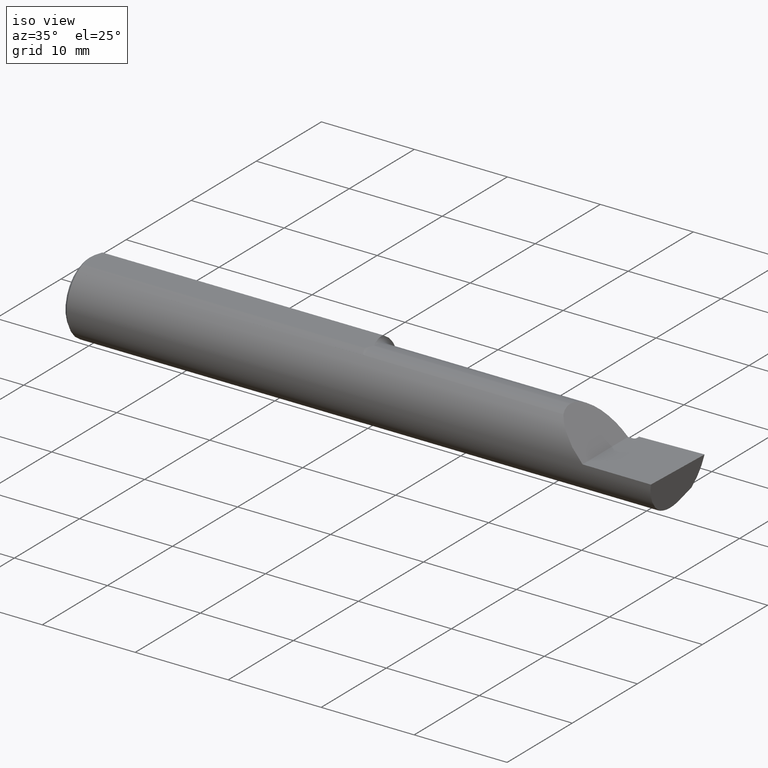
[diagram: clean part render]
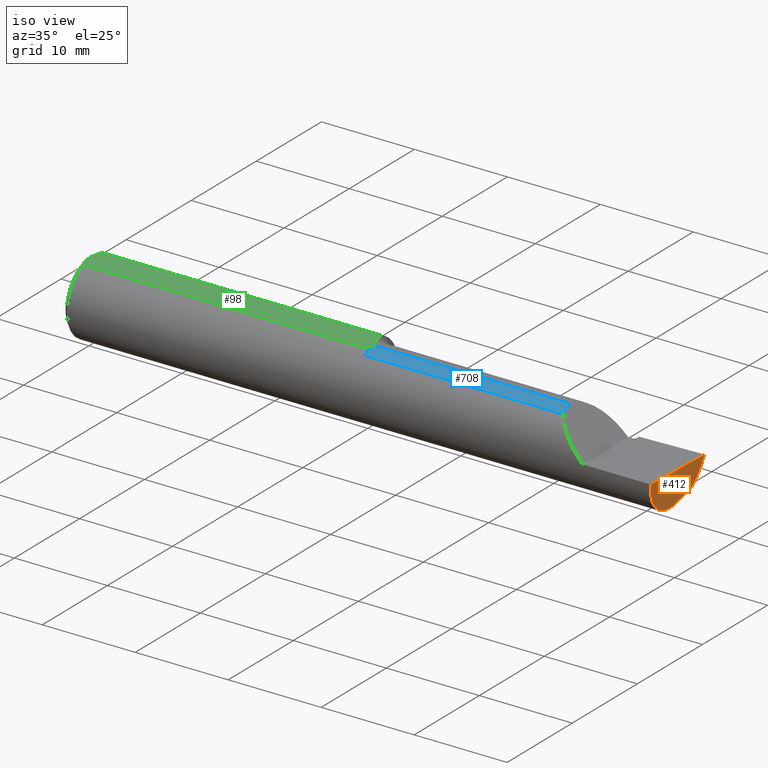
[diagram: same view with three faces highlighted in distinct colors, each labeled with its STEP entity id]
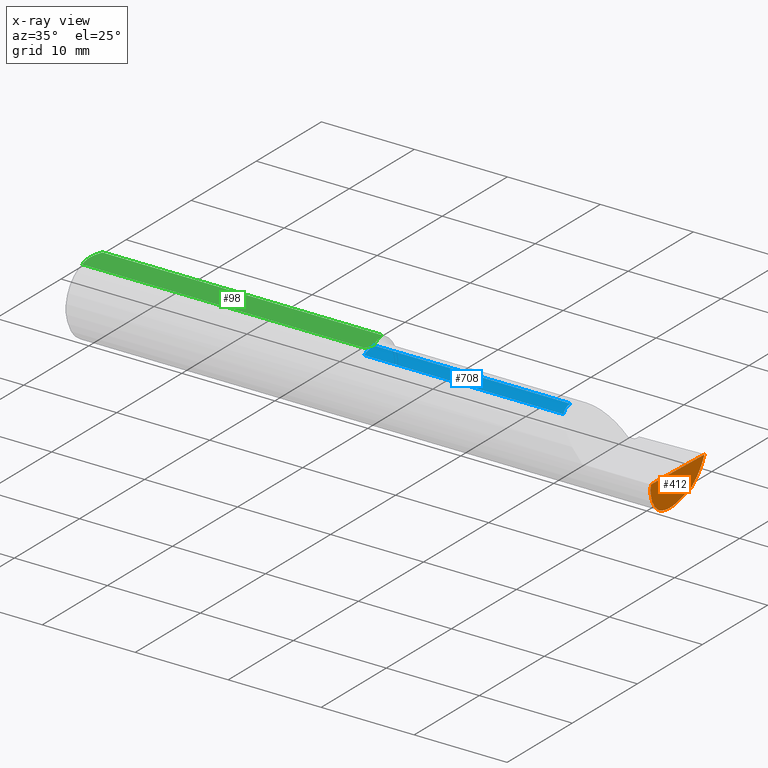
[diagram: x-ray of the same camera — body ghosted, the three highlighted faces saturated]
A machine part, iso view with three faces highlighted in distinct colors.
The next image is the same camera in x-ray (body ghosted, the three faces saturated) — at least one of them is partly hidden behind the body in this view.
Their STEP definitions:

[orange] entity #412 — the highlighted planar face has unit normal (-0.992, 0.0344, 0.1219).
#1 = CARTESIAN_POINT ( 'NONE',  ( 2.499553225608604823, 0.1407279727905360600, 3.826894855694925850E-18 ) ) ;
#19 = VERTEX_POINT ( 'NONE', #198 ) ;
#63 = ORIENTED_EDGE ( 'NONE', *, *, #346, .F. ) ;
#64 = CARTESIAN_POINT ( 'NONE',  ( 2.484581445595339666, 0.09576735185317598875, -0.1091794601135748777 ) ) ;
#68 = CARTESIAN_POINT ( 'NONE',  ( 2.476130359589496788, -0.02499999999999999098, -0.1439000000000000556 ) ) ;
#73 = CARTESIAN_POINT ( 'NONE',  ( 2.475676552398977215, -0.08569999999999944329, -0.1304711462354803120 ) ) ;
#79 = CARTESIAN_POINT ( 'NONE',  ( 2.500000000000000000, 0.1536194554637218546, 2.048885995248197414E-16 ) ) ;
#99 =( BOUNDED_CURVE ( )  B_SPLINE_CURVE ( 3, ( #621, #131, #139, #350 ),
 .UNSPECIFIED., .F., .F. ) 
 B_SPLINE_CURVE_WITH_KNOTS ( ( 4, 4 ),
 ( 6.122674497807367722, 6.558126988897922338 ),
 .UNSPECIFIED. ) 
 CURVE ( )  GEOMETRIC_REPRESENTATION_ITEM ( )  RATIONAL_B_SPLINE_CURVE ( ( 1.000000000000000000, 0.9842607512044745377, 0.9842607512044745377, 1.000000000000000000 ) ) 
 REPRESENTATION_ITEM ( '' )  );
#105 = CARTESIAN_POINT ( 'NONE',  ( 2.500000000000000000, 0.1536194554637218546, 2.048885995248197414E-16 ) ) ;
#126 = CARTESIAN_POINT ( 'NONE',  ( 2.489315288308734608, 0.1256128547571744025, -0.07906752438118797022 ) ) ;
#130 = ORIENTED_EDGE ( 'NONE', *, *, #627, .T. ) ;
#131 = CARTESIAN_POINT ( 'NONE',  ( 2.475247014433751946, -0.06661082633900415606, -0.1393521354400290846 ) ) ;
#139 = CARTESIAN_POINT ( 'NONE',  ( 2.475400702430881950, -0.04605394310600625929, -0.1439000000000000834 ) ) ;
#160 = ORIENTED_EDGE ( 'NONE', *, *, #526, .F. ) ;
#168 =( BOUNDED_CURVE ( )  B_SPLINE_CURVE ( 3, ( #555, #398, #175, #612 ),
 .UNSPECIFIED., .F., .T. ) 
 B_SPLINE_CURVE_WITH_KNOTS ( ( 4, 4 ),
 ( 0.2749416817183363282, 0.6240075321171965061 ),
 .UNSPECIFIED. ) 
 CURVE ( )  GEOMETRIC_REPRESENTATION_ITEM ( )  RATIONAL_B_SPLINE_CURVE ( ( 1.000000000000000000, 0.9898718353414723836, 0.9898718353414723836, 1.000000000000000000 ) ) 
 REPRESENTATION_ITEM ( '' )  );
#175 = CARTESIAN_POINT ( 'NONE',  ( 2.477647009804057276, 0.008402520951239019972, -0.1409776580835795379 ) ) ;
#198 = CARTESIAN_POINT ( 'NONE',  ( 2.475676552398977215, -0.08569999999999944329, -0.1304711462354803120 ) ) ;
#208 = DIRECTION ( 'NONE',  ( 0.07437990725530781166, 0.9370896517296887218, 0.3410727400684822053 ) ) ;
#224 = VERTEX_POINT ( 'NONE', #105 ) ;
#235 = EDGE_LOOP ( 'NONE', ( #130, #615, #576, #654, #63, #160 ) ) ;
#243 = VECTOR ( 'NONE', #508, 39.37007874015748143 ) ;
#274 = EDGE_CURVE ( 'NONE', #613, #517, #168, .T. ) ;
#301 = VERTEX_POINT ( 'NONE', #681 ) ;
#315 = DIRECTION ( 'NONE',  ( 0.1219414168599299575, 0.000000000000000000, 0.9925372994775525370 ) ) ;
#346 = EDGE_CURVE ( 'NONE', #301, #224, #470, .T. ) ;
#350 = CARTESIAN_POINT ( 'NONE',  ( 2.476130359589496788, -0.02499999999999999098, -0.1439000000000000556 ) ) ;
#393 =( BOUNDED_CURVE ( )  B_SPLINE_CURVE ( 3, ( #73, #577, #676, #680 ),
 .UNSPECIFIED., .F., .F. ) 
 B_SPLINE_CURVE_WITH_KNOTS ( ( 4, 4 ),
 ( 0.3062340898531133448, 1.295854645076560674 ),
 .UNSPECIFIED. ) 
 CURVE ( )  GEOMETRIC_REPRESENTATION_ITEM ( )  RATIONAL_B_SPLINE_CURVE ( ( 1.000000000000000000, 0.9200392120919970163, 0.9200392120919970163, 1.000000000000000000 ) ) 
 REPRESENTATION_ITEM ( '' )  );
#398 = CARTESIAN_POINT ( 'NONE',  ( 2.476713598110543035, -0.008170903630063761774, -0.1439000000000000834 ) ) ;
#412 = ADVANCED_FACE ( 'NONE', ( #482 ), #691, .F. ) ;
#459 = CARTESIAN_POINT ( 'NONE',  ( 2.478902233428061930, 0.02421669862456291358, -0.1352217681310924902 ) ) ;
#465 =( BOUNDED_CURVE ( )  B_SPLINE_CURVE ( 3, ( #64, #126, #514, #79 ),
 .UNSPECIFIED., .F., .F. ) 
 B_SPLINE_CURVE_WITH_KNOTS ( ( 4, 4 ),
 ( 4.206370596475368373, 4.793754225472294905 ),
 .UNSPECIFIED. ) 
 CURVE ( )  GEOMETRIC_REPRESENTATION_ITEM ( )  RATIONAL_B_SPLINE_CURVE ( ( 1.000000000000000000, 0.9714544434386379601, 0.9714544434386379601, 1.000000000000000000 ) ) 
 REPRESENTATION_ITEM ( '' )  );
#470 = LINE ( 'NONE', #1, #243 ) ;
#478 = DIRECTION ( 'NONE',  ( -0.9919506264397697226, 0.03437759245049914342, 0.1218693392246628371 ) ) ;
#481 = LINE ( 'NONE', #637, #606 ) ;
#482 = FACE_OUTER_BOUND ( 'NONE', #235, .T. ) ;
#508 = DIRECTION ( 'NONE',  ( 0.03463576215158579996, 0.9994000019912840926, 0.000000000000000000 ) ) ;
#514 = CARTESIAN_POINT ( 'NONE',  ( 2.494605827839288192, 0.1454635380981003090, -0.04160498188424514160 ) ) ;
#517 = VERTEX_POINT ( 'NONE', #459 ) ;
#526 = EDGE_CURVE ( 'NONE', #19, #301, #393, .T. ) ;
#555 = CARTESIAN_POINT ( 'NONE',  ( 2.476130359589496788, -0.02499999999999999098, -0.1439000000000000556 ) ) ;
#560 = EDGE_CURVE ( 'NONE', #661, #224, #465, .T. ) ;
#575 = AXIS2_PLACEMENT_3D ( 'NONE', #582, #478, #315 ) ;
#576 = ORIENTED_EDGE ( 'NONE', *, *, #685, .T. ) ;
#577 = CARTESIAN_POINT ( 'NONE',  ( 2.477743596163800799, -0.1305938407426047998, -0.1009826174484541872 ) ) ;
#582 = CARTESIAN_POINT ( 'NONE',  ( 2.444043095161126278, 0.1555735136390714868, -0.4560102071422535985 ) ) ;
#594 = CARTESIAN_POINT ( 'NONE',  ( 2.484581445595339666, 0.09576735185317598875, -0.1091794601135748777 ) ) ;
#606 = VECTOR ( 'NONE', #208, 39.37007874015748143 ) ;
#612 = CARTESIAN_POINT ( 'NONE',  ( 2.478902233428061930, 0.02421669862456291358, -0.1352217681310924902 ) ) ;
#613 = VERTEX_POINT ( 'NONE', #68 ) ;
#615 = ORIENTED_EDGE ( 'NONE', *, *, #274, .T. ) ;
#621 = CARTESIAN_POINT ( 'NONE',  ( 2.475676552398977215, -0.08569999999999944329, -0.1304711462354803120 ) ) ;
#627 = EDGE_CURVE ( 'NONE', #19, #613, #99, .T. ) ;
#637 = CARTESIAN_POINT ( 'NONE',  ( 2.479018954091639859, 0.02568722648642991421, -0.1346865397607137915 ) ) ;
#654 = ORIENTED_EDGE ( 'NONE', *, *, #560, .T. ) ;
#661 = VERTEX_POINT ( 'NONE', #594 ) ;
#676 = CARTESIAN_POINT ( 'NONE',  ( 2.482667168175672678, -0.1560999999999999888, -0.05371247775559866849 ) ) ;
#680 = CARTESIAN_POINT ( 'NONE',  ( 2.489266190342419360, -0.1561000000000000165, 3.826894855694925850E-18 ) ) ;
#681 = CARTESIAN_POINT ( 'NONE',  ( 2.489266190342419360, -0.1561000000000000165, 3.826894855694925850E-18 ) ) ;
#685 = EDGE_CURVE ( 'NONE', #517, #661, #481, .T. ) ;
#691 = PLANE ( 'NONE',  #575 ) ;

[blue] entity #708 — the highlighted cylindrical surface (partial cylindrical patch) has radius 3.6551 mm, axis along (-1, -0, -0).
#12 = ORIENTED_EDGE ( 'NONE', *, *, #254, .F. ) ;
#78 = ORIENTED_EDGE ( 'NONE', *, *, #342, .T. ) ;
#89 =( BOUNDED_CURVE ( )  B_SPLINE_CURVE ( 3, ( #663, #401, #234, #713 ),
 .UNSPECIFIED., .F., .F. ) 
 B_SPLINE_CURVE_WITH_KNOTS ( ( 4, 4 ),
 ( 5.847732816089013852, 6.283185307179586232 ),
 .UNSPECIFIED. ) 
 CURVE ( )  GEOMETRIC_REPRESENTATION_ITEM ( )  RATIONAL_B_SPLINE_CURVE ( ( 1.000000000000000000, 0.9842607512044733165, 0.9842607512044733165, 1.000000000000000000 ) ) 
 REPRESENTATION_ITEM ( '' )  );
#104 = FACE_OUTER_BOUND ( 'NONE', #177, .T. ) ;
#112 = EDGE_CURVE ( 'NONE', #188, #493, #699, .T. ) ;
#114 = DIRECTION ( 'NONE',  ( 0.000000000000000000, 0.000000000000000000, 1.000000000000000000 ) ) ;
#174 = VERTEX_POINT ( 'NONE', #500 ) ;
#177 = EDGE_LOOP ( 'NONE', ( #455, #668, #12, #78 ) ) ;
#188 = VERTEX_POINT ( 'NONE', #283 ) ;
#189 = CARTESIAN_POINT ( 'NONE',  ( 2.069528853764521781, -0.08570000000000160822, 0.1304711462354791740 ) ) ;
#199 = EDGE_CURVE ( 'NONE', #620, #188, #89, .T. ) ;
#234 = CARTESIAN_POINT ( 'NONE',  ( 2.056100000000000705, -0.04605394310600714747, 0.1439000000000000834 ) ) ;
#254 = EDGE_CURVE ( 'NONE', #174, #493, #449, .T. ) ;
#265 = VECTOR ( 'NONE', #645, 39.37007874015748143 ) ;
#266 = DIRECTION ( 'NONE',  ( 0.000000000000000000, 0.000000000000000000, 1.000000000000000000 ) ) ;
#283 = CARTESIAN_POINT ( 'NONE',  ( 2.056100000000000705, -0.02500000000000000486, 0.1439000000000000556 ) ) ;
#322 = DIRECTION ( 'NONE',  ( -1.000000000000000000, -0.000000000000000000, -0.000000000000000000 ) ) ;
#332 = AXIS2_PLACEMENT_3D ( 'NONE', #373, #322, #266 ) ;
#338 = DIRECTION ( 'NONE',  ( -1.000000000000000000, -0.000000000000000000, -0.000000000000000000 ) ) ;
#342 = EDGE_CURVE ( 'NONE', #174, #620, #686, .T. ) ;
#373 = CARTESIAN_POINT ( 'NONE',  ( 0.000000000000000000, -0.02500000000000000486, 0.000000000000000000 ) ) ;
#401 = CARTESIAN_POINT ( 'NONE',  ( 2.060647864559971953, -0.06661082633900586303, 0.1393521354400287238 ) ) ;
#445 = CARTESIAN_POINT ( 'NONE',  ( 1.225000000000000089, -0.02500000000000000486, 0.000000000000000000 ) ) ;
#449 = CIRCLE ( 'NONE', #538, 0.1439000000000000001 ) ;
#455 = ORIENTED_EDGE ( 'NONE', *, *, #199, .T. ) ;
#493 = VERTEX_POINT ( 'NONE', #694 ) ;
#500 = CARTESIAN_POINT ( 'NONE',  ( 1.225000000000000089, -0.08569999999999958207, 0.1304711462354801732 ) ) ;
#533 = CARTESIAN_POINT ( 'NONE',  ( 0.000000000000000000, -0.02500000000000000486, 0.1439000000000000556 ) ) ;
#538 = AXIS2_PLACEMENT_3D ( 'NONE', #445, #338, #114 ) ;
#584 = CYLINDRICAL_SURFACE ( 'NONE', #332, 0.1439000000000000556 ) ;
#586 = VECTOR ( 'NONE', #632, 39.37007874015748143 ) ;
#614 = CARTESIAN_POINT ( 'NONE',  ( 1.722499999999999698, -0.08569999999999944329, 0.1304711462354803120 ) ) ;
#620 = VERTEX_POINT ( 'NONE', #189 ) ;
#632 = DIRECTION ( 'NONE',  ( 1.000000000000000000, 0.000000000000000000, 0.000000000000000000 ) ) ;
#645 = DIRECTION ( 'NONE',  ( -1.000000000000000000, -0.000000000000000000, -0.000000000000000000 ) ) ;
#663 = CARTESIAN_POINT ( 'NONE',  ( 2.069528853764521781, -0.08570000000000160822, 0.1304711462354791740 ) ) ;
#668 = ORIENTED_EDGE ( 'NONE', *, *, #112, .T. ) ;
#686 = LINE ( 'NONE', #614, #586 ) ;
#694 = CARTESIAN_POINT ( 'NONE',  ( 1.225000000000000089, -0.02500000000000000486, 0.1439000000000000001 ) ) ;
#699 = LINE ( 'NONE', #533, #265 ) ;
#708 = ADVANCED_FACE ( 'NONE', ( #104 ), #584, .T. ) ;
#713 = CARTESIAN_POINT ( 'NONE',  ( 2.056100000000000705, -0.02500000000000000486, 0.1439000000000000556 ) ) ;

[green] entity #98 — the highlighted planar face has unit normal (-0, 0, -1).
#18 = CARTESIAN_POINT ( 'NONE',  ( 0.01499999999999972536, -0.06001999666777736026, 0.1440999999999999504 ) ) ;
#23 = CARTESIAN_POINT ( 'NONE',  ( 1.221036826405246689, -0.03107590170041915276, 0.1441000000000000059 ) ) ;
#26 = CARTESIAN_POINT ( 'NONE',  ( 1.212837095251398045, -0.05422015848554267992, 0.1440999999999999781 ) ) ;
#27 = CARTESIAN_POINT ( 'NONE',  ( 0.002999999999999654852, 1.764715027525136477E-17, 0.1440999999999999504 ) ) ;
#28 = EDGE_CURVE ( 'NONE', #38, #49, #503, .T. ) ;
#38 = VERTEX_POINT ( 'NONE', #593 ) ;
#48 = CARTESIAN_POINT ( 'NONE',  ( 1.221844053232376215, -0.02500000000003146580, 0.1440999999999999504 ) ) ;
#49 = VERTEX_POINT ( 'NONE', #312 ) ;
#81 = CARTESIAN_POINT ( 'NONE',  ( 0.01133677082750125277, -0.05049267068356103755, 0.1440999999999999781 ) ) ;
#82 = AXIS2_PLACEMENT_3D ( 'NONE', #272, #380, #263 ) ;
#86 = CARTESIAN_POINT ( 'NONE',  ( 1.210843495424060334, -0.06001999666777306508, 0.1440999999999999504 ) ) ;
#88 = CARTESIAN_POINT ( 'NONE',  ( 0.002999999999999648781, 0.01034624861404697359, 0.1440999999999999781 ) ) ;
#98 = ADVANCED_FACE ( 'NONE', ( #489 ), #436, .F. ) ;
#109 = CARTESIAN_POINT ( 'NONE',  ( 1.220724021719191255, -0.01776615298046146582, 0.1440999999999999781 ) ) ;
#127 = EDGE_CURVE ( 'NONE', #49, #403, #339, .T. ) ;
#144 = CARTESIAN_POINT ( 'NONE',  ( 2.500000000000000000, 0.06001999666777736719, 0.1440999999999999504 ) ) ;
#145 = CARTESIAN_POINT ( 'NONE',  ( 0.01131807689752593361, 0.05044405151276061539, 0.1440999999999999781 ) ) ;
#155 = ORIENTED_EDGE ( 'NONE', *, *, #475, .F. ) ;
#162 = CARTESIAN_POINT ( 'NONE',  ( 1.204082834115638212, 0.03088512097718107766, 0.1440999999999999504 ) ) ;
#190 = ORIENTED_EDGE ( 'NONE', *, *, #28, .T. ) ;
#196 = CARTESIAN_POINT ( 'NONE',  ( 2.500000000000000000, -0.06001999666777736719, 0.1440999999999999504 ) ) ;
#203 = ORIENTED_EDGE ( 'NONE', *, *, #127, .T. ) ;
#229 = EDGE_CURVE ( 'NONE', #628, #334, #399, .T. ) ;
#253 = CARTESIAN_POINT ( 'NONE',  ( 1.210843495424060334, -0.06001999666777306508, 0.1440999999999999504 ) ) ;
#260 = LINE ( 'NONE', #144, #278 ) ;
#261 = CARTESIAN_POINT ( 'NONE',  ( 0.002999999999999647914, -0.01031315224690933403, 0.1440999999999999781 ) ) ;
#263 = DIRECTION ( 'NONE',  ( -1.000000000000000000, 0.000000000000000000, 0.000000000000000000 ) ) ;
#264 = ORIENTED_EDGE ( 'NONE', *, *, #229, .F. ) ;
#268 = VECTOR ( 'NONE', #630, 39.37007874015748143 ) ;
#272 = CARTESIAN_POINT ( 'NONE',  ( 0.000000000000000000, 0.06250000000000000000, 0.1440999999999999504 ) ) ;
#278 = VECTOR ( 'NONE', #695, 39.37007874015748143 ) ;
#296 = EDGE_LOOP ( 'NONE', ( #264, #524, #190, #203, #673, #155 ) ) ;
#312 = CARTESIAN_POINT ( 'NONE',  ( 0.002999999999999654852, 1.764715027525136477E-17, 0.1440999999999999504 ) ) ;
#334 = VERTEX_POINT ( 'NONE', #512 ) ;
#339 = B_SPLINE_CURVE_WITH_KNOTS ( 'NONE', 3,
 ( #27, #261, #652, #366, #81, #529 ),
 .UNSPECIFIED., .F., .F.,
 ( 4, 2, 4 ),
 ( 0.004180243930011207955, 0.004951811791491188969, 0.005723379652971170850 ),
 .UNSPECIFIED. ) ;
#355 = LINE ( 'NONE', #196, #268 ) ;
#366 = CARTESIAN_POINT ( 'NONE',  ( 0.008281010600930404503, -0.04057055625899311929, 0.1440999999999999226 ) ) ;
#368 = CARTESIAN_POINT ( 'NONE',  ( 1.218148277183320749, -0.03981762987256245306, 0.1440999999999999504 ) ) ;
#375 = CARTESIAN_POINT ( 'NONE',  ( 0.002999999999999654852, 1.764715027525136477E-17, 0.1440999999999999504 ) ) ;
#380 = DIRECTION ( 'NONE',  ( -0.000000000000000000, 0.000000000000000000, -1.000000000000000000 ) ) ;
#389 = CARTESIAN_POINT ( 'NONE',  ( 1.213353959584573483, 0.002866311517153515617, 0.1440999999999999504 ) ) ;
#399 = B_SPLINE_CURVE_WITH_KNOTS ( 'NONE', 3,
 ( #558, #657, #162, #727, #389, #453, #506, #109, #609, #48 ),
 .UNSPECIFIED., .F., .F.,
 ( 4, 2, 2, 2, 4 ),
 ( 0.01301670781631352782, 0.01412932456335166086, 0.01468563293687072738, 0.01496378712363025804, 0.01524194131038979043 ),
 .UNSPECIFIED. ) ;
#403 = VERTEX_POINT ( 'NONE', #18 ) ;
#405 = VERTEX_POINT ( 'NONE', #253 ) ;
#406 = EDGE_CURVE ( 'NONE', #38, #628, #260, .T. ) ;
#410 = CARTESIAN_POINT ( 'NONE',  ( 0.008267319495954040393, 0.04051643528673654765, 0.1440999999999999781 ) ) ;
#423 = CARTESIAN_POINT ( 'NONE',  ( 1.221844053232374439, -0.02804753169359752371, 0.1440999999999999781 ) ) ;
#424 = CARTESIAN_POINT ( 'NONE',  ( 0.01499999999999970281, 0.06001999666777736719, 0.1440999999999999504 ) ) ;
#436 = PLANE ( 'NONE',  #82 ) ;
#453 = CARTESIAN_POINT ( 'NONE',  ( 1.217139718007822058, -0.007416860360647821448, 0.1440999999999999226 ) ) ;
#475 = EDGE_CURVE ( 'NONE', #334, #405, #546, .T. ) ;
#489 = FACE_OUTER_BOUND ( 'NONE', #296, .T. ) ;
#503 = B_SPLINE_CURVE_WITH_KNOTS ( 'NONE', 3,
 ( #424, #145, #410, #640, #88, #375 ),
 .UNSPECIFIED., .F., .F.,
 ( 4, 2, 4 ),
 ( 0.002632156065823466548, 0.003406199997917337685, 0.004180243930011207955 ),
 .UNSPECIFIED. ) ;
#506 = CARTESIAN_POINT ( 'NONE',  ( 1.218418672230970667, -0.01083899323586594299, 0.1440999999999999504 ) ) ;
#512 = CARTESIAN_POINT ( 'NONE',  ( 1.221844053232376215, -0.02500000000003146580, 0.1440999999999999504 ) ) ;
#524 = ORIENTED_EDGE ( 'NONE', *, *, #406, .F. ) ;
#529 = CARTESIAN_POINT ( 'NONE',  ( 0.01499999999999972536, -0.06001999666777736026, 0.1440999999999999504 ) ) ;
#546 = B_SPLINE_CURVE_WITH_KNOTS ( 'NONE', 3,
 ( #643, #423, #23, #639, #368, #585, #26, #86 ),
 .UNSPECIFIED., .F., .F.,
 ( 4, 2, 2, 4 ),
 ( 0.0006785821176393243368, 0.0009116715494801296569, 0.001144760981320934977, 0.001610939845002545617 ),
 .UNSPECIFIED. ) ;
#549 = EDGE_CURVE ( 'NONE', #405, #403, #355, .T. ) ;
#558 = CARTESIAN_POINT ( 'NONE',  ( 1.200050504025077514, 0.06001999666777729781, 0.1440999999999999504 ) ) ;
#571 = CARTESIAN_POINT ( 'NONE',  ( 1.200050504025077514, 0.06001999666777729781, 0.1440999999999999504 ) ) ;
#585 = CARTESIAN_POINT ( 'NONE',  ( 1.214985600317322056, -0.04846509284843827925, 0.1440999999999999781 ) ) ;
#593 = CARTESIAN_POINT ( 'NONE',  ( 0.01499999999999970281, 0.06001999666777736719, 0.1440999999999999504 ) ) ;
#609 = CARTESIAN_POINT ( 'NONE',  ( 1.221844053232384875, -0.02136326841098774507, 0.1440999999999998948 ) ) ;
#628 = VERTEX_POINT ( 'NONE', #571 ) ;
#630 = DIRECTION ( 'NONE',  ( -1.000000000000000000, -0.000000000000000000, -0.000000000000000000 ) ) ;
#639 = CARTESIAN_POINT ( 'NONE',  ( 1.219201185154609623, -0.03693468910894925905, 0.1440999999999999226 ) ) ;
#640 = CARTESIAN_POINT ( 'NONE',  ( 0.004122478534597582081, 0.02050740516666000463, 0.1440999999999999504 ) ) ;
#643 = CARTESIAN_POINT ( 'NONE',  ( 1.221844053232376215, -0.02500000000003146580, 0.1440999999999999504 ) ) ;
#652 = CARTESIAN_POINT ( 'NONE',  ( 0.004124548268480916768, -0.02052932358343030617, 0.1441000000000000059 ) ) ;
#657 = CARTESIAN_POINT ( 'NONE',  ( 1.200532541532474351, 0.04511886254871746993, 0.1440999999999999781 ) ) ;
#673 = ORIENTED_EDGE ( 'NONE', *, *, #549, .F. ) ;
#695 = DIRECTION ( 'NONE',  ( 1.000000000000000000, 0.000000000000000000, 0.000000000000000000 ) ) ;
#727 = CARTESIAN_POINT ( 'NONE',  ( 1.210816084744949395, 0.009840729273020366180, 0.1440999999999999504 ) ) ;